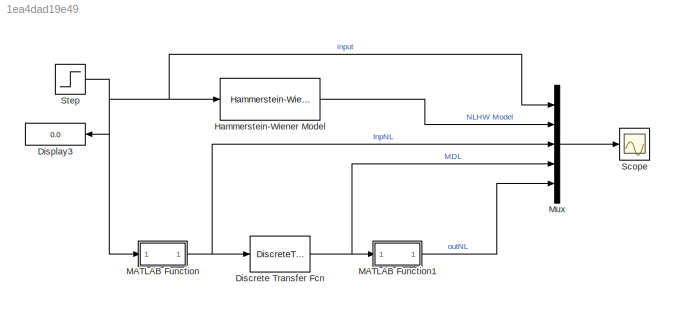
MODEL slx_1ea4dad19e49
KIND model
CONFIG AbsTol = auto
CONFIG EnableMultiTasking = off
CONFIG FixedStep = auto
CONFIG MaxStep = auto
CONFIG MinStep = auto
CONFIG RelTol = 1e-3
CONFIG SampleTimeConstraint = Unconstrained
CONFIG SolverName = VariableStepAuto
CONFIG StartTime = 0.0
CONFIG StopTime = 1
BLOCK [DiscreteTransferFcn] Discrete Transfer Fcn
  Denominator = [1, -2.557, 2.214, -0.6516]
  InputPortMap = u0
  Numerator = [1, -0.9596, 0]
  Ports = [1, 1]
  SampleTime = 0.01
BLOCK [Display] Display3
  Decimation = 1
  NameLocation = top
  Ports = [1]
BLOCK [Reference] Hammerstein-Wiener Model  REF=slident/Models/Hammerstein-Wiener Model  (lib defined in mdl_f7d4911ca73a)
  Ports = [1, 1]
  SourceBlock = slident/Models/Hammerstein-Wiener Model
  SourceProductBaseCode = ID
  SourceType = Hammerstein-Wiener Model
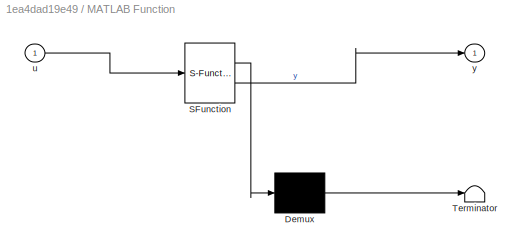
BLOCK [SubSystem] MATLAB Function
  ErrorFcn = Stateflow.Translate.translate
  PermitHierarchicalResolution = ExplicitOnly
  Ports = [1, 1]
  RequestExecContextInheritance = off
  SFBlockType = MATLAB Function
  TreatAsAtomicUnit = on
BLOCK [Demux] MATLAB Function/ Demux 
  Outputs = 1
  Ports = [1, 1]
BLOCK [S-Function] MATLAB Function/ SFunction 
  EnableBusSupport = on
  FunctionName = sf_sfun
  PortCounts = [1 2]
  Ports = [1, 2]
  SFcnIsStateOwnerBlock = off
  SFunctionDeploymentMode = off
  Tag = Stateflow S-Function 2
BLOCK [Terminator] MATLAB Function/ Terminator 
BLOCK [Inport] MATLAB Function/u
BLOCK [Outport] MATLAB Function/y
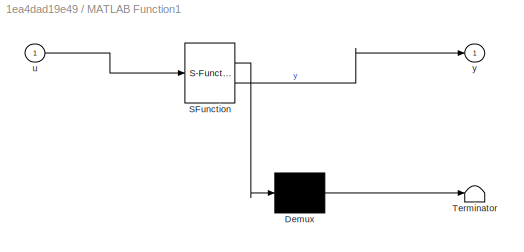
BLOCK [SubSystem] MATLAB Function1
  ErrorFcn = Stateflow.Translate.translate
  PermitHierarchicalResolution = ExplicitOnly
  Ports = [1, 1]
  RequestExecContextInheritance = off
  SFBlockType = MATLAB Function
  TreatAsAtomicUnit = on
BLOCK [Demux] MATLAB Function1/ Demux 
  Outputs = 1
  Ports = [1, 1]
BLOCK [S-Function] MATLAB Function1/ SFunction 
  EnableBusSupport = on
  FunctionName = sf_sfun
  PortCounts = [1 2]
  Ports = [1, 2]
  SFcnIsStateOwnerBlock = off
  SFunctionDeploymentMode = off
  Tag = Stateflow S-Function 1
BLOCK [Terminator] MATLAB Function1/ Terminator 
BLOCK [Inport] MATLAB Function1/u
BLOCK [Outport] MATLAB Function1/y
BLOCK [Mux] Mux
  DisplayOption = bar
  Inputs = 5
  Ports = [5, 1]
BLOCK [Scope] Scope
  Floating = off
  NumInputPorts = 1
  Ports = [1]
  ScopeSpecificationString = Simulink.scopes.TimeScopeBlockCfg('CurrentConfiguration', extmgr.ConfigurationSet(extmgr.Configuration('Core','General UI',true),extmgr.Configuration('Core','Source UI',true),extmgr.Configuration('Sources','WiredSimulink',true),extmgr.Configuration('Visuals','Time Domain',true,'SerializedDisplays',{struct('MinYLimReal','-7.24283','MaxYLimReal','64.53638','YLabelReal','','MinYLimMag','0.00000','Max...<+1466ch>
BLOCK [Step] Step
  SampleTime = 0.01
  Time = 0.02
NET Discrete Transfer Fcn:1 -> MATLAB Function1:1, Mux:4
LINE Hammerstein-Wiener Model:1 -> Mux:2
LINE MATLAB Function1:1 -> Mux:5
NET MATLAB Function:1 -> Discrete Transfer Fcn:1, Mux:3
LINE Mux:1 -> Scope:1
NET Step:1 -> Display3:1, Hammerstein-Wiener Model:1, MATLAB Function:1, Mux:1
note: NET lines group one-source signal fan-out (src -> all destinations, sorted); 1:1 wires keep LINE
CHART MATLAB Function states=1 transitions=1
  STATE_LABEL 'eML_blk_kernel()'
  STATE_LABEL 'SCRIPT:\nfunction y = inputNonLinearity(u)\n    x2 = [-0.4731, 0.2448, 0.419, 0.4531, 0.6003, 0.8796, 1];       \n    y2 = [-0.039, 0.0438, 0.1095, 0.1460, 0.2493, 0.5134, 0.627248];\n    y = interp1(x2, y2, u);\nend'
CHART MATLAB Function1 states=1 transitions=1
  STATE_LABEL 'eML_blk_kernel()'
  STATE_LABEL 'SCRIPT:\nfunction y = outputNonLinearity(u)\n        x2 = [-4.1721, -2.6285, -0.7644, 0.0366, 0.1922, 1.071, 2.2186, 3.0185, 3.0625, 3.6097, 6.8054, 15];      \n        y2 = [-3.1008, -2.8004, 0.2749, -0.0683, 0.0711, 5.0916, 14.0317, 22.6874, 22.5085, 25.7928, 49.701, 111];\n        y = interp1(x2, y2, u);\nend'
CHART  states=0 transitions=0
CHART  states=0 transitions=0
